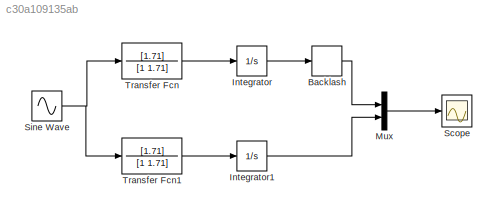
MODEL slx_c30a109135ab
KIND model
CONFIG AbsTol = auto
CONFIG EnableMultiTasking = off
CONFIG FixedStep = auto
CONFIG MaxStep = auto
CONFIG MinStep = auto
CONFIG RelTol = 1e-3
CONFIG SampleTimeConstraint = Unconstrained
CONFIG SolverName = VariableStepAuto
CONFIG StartTime = 0.0
CONFIG StopTime = 10.0
BLOCK [Backlash] Backlash
BLOCK [Integrator] Integrator
BLOCK [Integrator] Integrator1
BLOCK [Mux] Mux
  DisplayOption = bar
  Inputs = 2
BLOCK [Scope] Scope
  Floating = off
  NumInputPorts = 1
  ScopeSpecificationString = Simulink.scopes.TimeScopeBlockCfg('CurrentConfiguration', extmgr.ConfigurationSet(extmgr.Configuration('Core','General UI',true),extmgr.Configuration('Core','Source UI',true),extmgr.Configuration('Sources','WiredSimulink',true),extmgr.Configuration('Visuals','Time Domain',true,'SerializedDisplays',{struct('MinYLimReal','-0.2329','MaxYLimReal','2.09607','YLabelReal','','MinYLimMag','0.00000','MaxYL...<+1340ch>
BLOCK [Sin] Sine Wave
  SampleTime = 0
BLOCK [TransferFcn] Transfer Fcn
  Denominator = [1 1.71]
  Numerator = [1.71]
BLOCK [TransferFcn] Transfer Fcn1
  Denominator = [1 1.71]
  Numerator = [1.71]
LINE Backlash:1 -> Mux:1
LINE Integrator1:1 -> Mux:2
LINE Integrator:1 -> Backlash:1
LINE Mux:1 -> Scope:1
NET Sine Wave:1 -> Transfer Fcn1:1, Transfer Fcn:1
LINE Transfer Fcn1:1 -> Integrator1:1
LINE Transfer Fcn:1 -> Integrator:1
note: NET lines group one-source signal fan-out (src -> all destinations, sorted); 1:1 wires keep LINE
